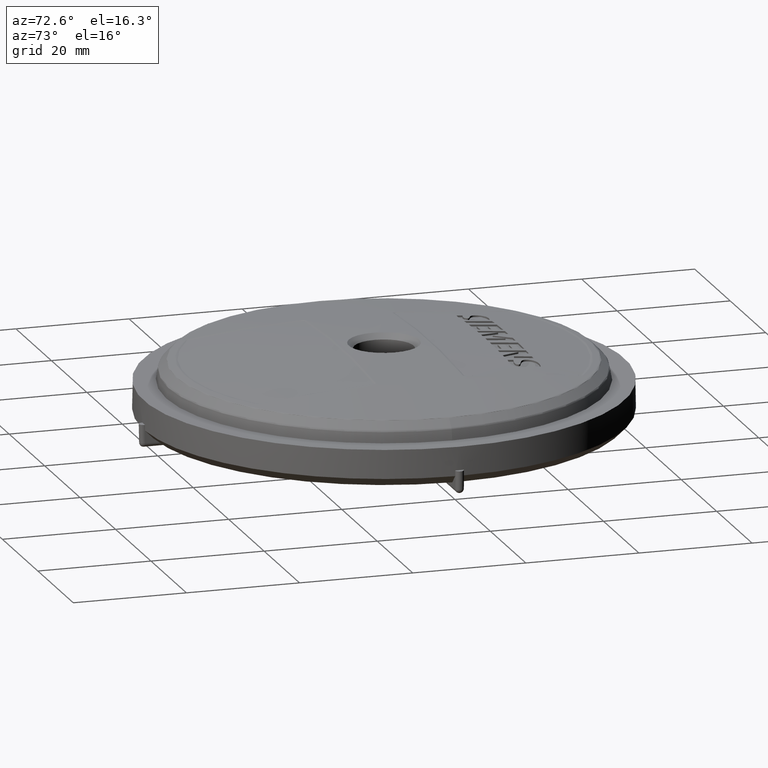
[diagram: clean part render]
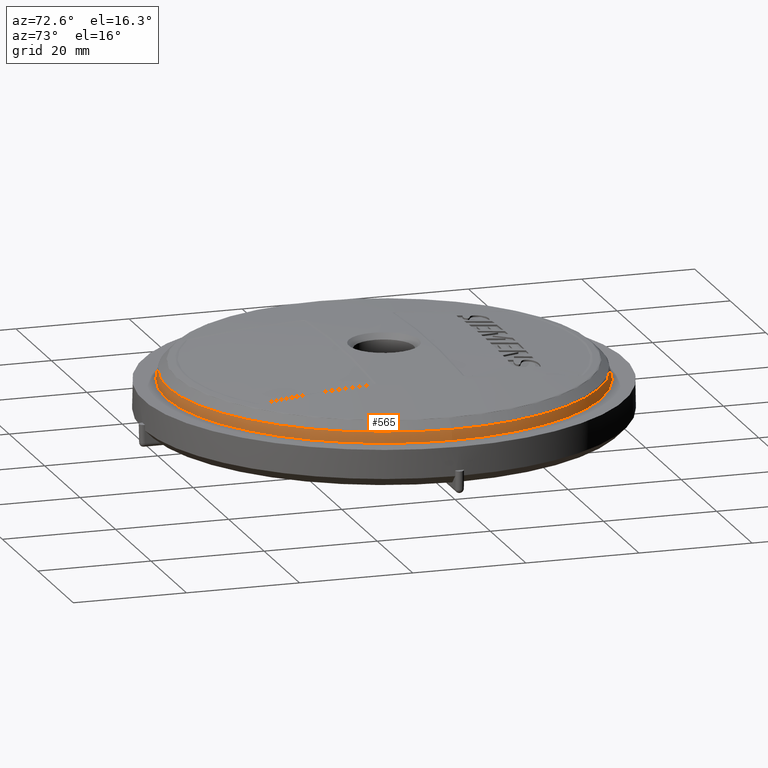
[diagram: same view with one face highlighted and labeled with its STEP entity id]
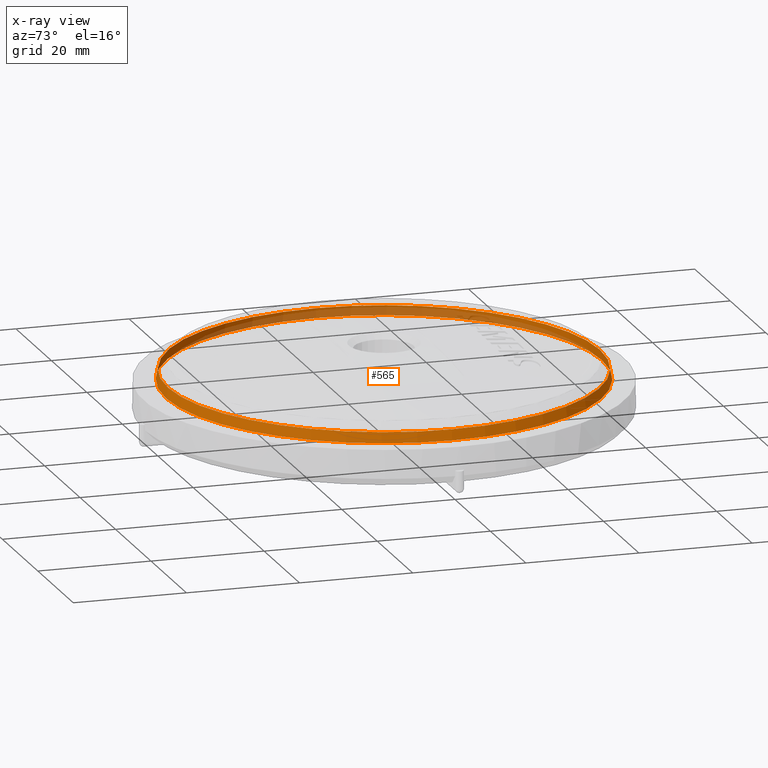
[diagram: x-ray of the same camera — body ghosted, the highlighted face saturated]
A machine part, auxiliary view. The second image highlights one B-rep face of the part: STEP entity #565.
The next image is the same camera in x-ray: the body ghosted, the highlighted face saturated — about 26% of this face is hidden behind the body in this view.
In plain terms, the highlighted conical surface has half-angle 10 deg.
Its self-contained STEP definition (entity closure, byte-faithful):
#300=CONICAL_SURFACE('',#2503,38.4999999966234,9.99999999997531);
#430=FACE_BOUND('',#858,.T.);
#431=FACE_BOUND('',#859,.T.);
#476=CIRCLE('',#2501,38.1747215768984);
#477=CIRCLE('',#2502,38.4999999966234);
#565=ADVANCED_FACE('',(#430,#431),#300,.T.);
#858=EDGE_LOOP('',(#1054));
#859=EDGE_LOOP('',(#1055));
#1054=ORIENTED_EDGE('',*,*,#2025,.T.);
#1055=ORIENTED_EDGE('',*,*,#2026,.T.);
#1779=VERTEX_POINT('',#3821);
#1780=VERTEX_POINT('',#3823);
#2025=EDGE_CURVE('',#1779,#1779,#476,.T.);
#2026=EDGE_CURVE('',#1780,#1780,#477,.T.);
#2501=AXIS2_PLACEMENT_3D('',#3820,#2692,#2693);
#2502=AXIS2_PLACEMENT_3D('',#3822,#2694,#2695);
#2503=AXIS2_PLACEMENT_3D('',#3824,#2696,#2697);
#2692=DIRECTION('',(0.,0.,-1.));
#2693=DIRECTION('',(1.,0.,0.));
#2694=DIRECTION('',(0.,0.,1.));
#2695=DIRECTION('',(-1.,0.,0.));
#2696=DIRECTION('',(0.,0.,-1.));
#2697=DIRECTION('',(1.,0.,-2.26099427399813E-16));
#3820=CARTESIAN_POINT('',(5.02898827078395E-30,7.86315457190769E-15,10.0447456072545));
#3821=CARTESIAN_POINT('',(38.1747215768984,7.86315457190769E-15,10.0447456072545));
#3822=CARTESIAN_POINT('',(5.02898827078395E-30,7.86315457190769E-15,8.2000000191495));
#3823=CARTESIAN_POINT('',(-38.4999999966234,7.86315457190769E-15,8.2000000191495));
#3824=CARTESIAN_POINT('',(5.02898827078395E-30,7.86315457190769E-15,8.20000001914949));